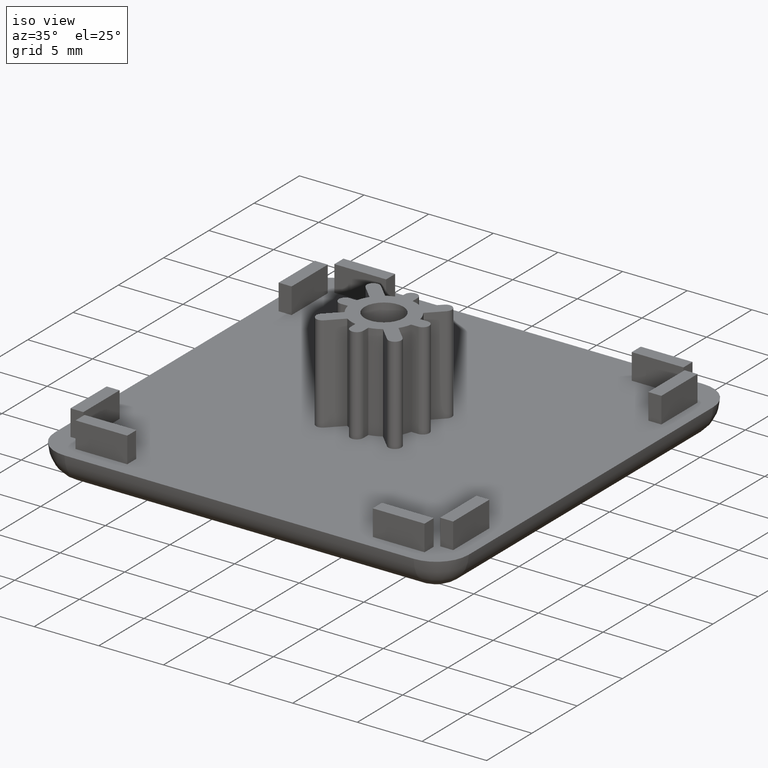
[diagram: clean part render]
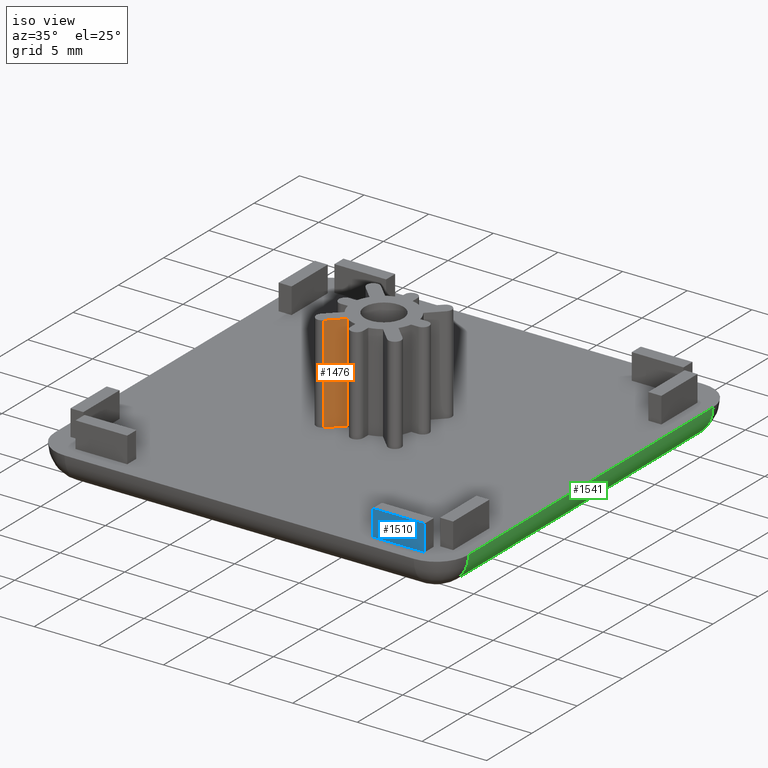
[diagram: same view with three faces highlighted in distinct colors, each labeled with its STEP entity id]
A machine part, iso view with three faces highlighted in distinct colors.
Their STEP definitions:

[orange] entity #1476 — the highlighted planar face has unit normal (0.7071, -0.7071, 0).
#27=PLANE('',#1583);
#112=LINE('',#2217,#280);
#113=LINE('',#2221,#281);
#114=LINE('',#2223,#282);
#115=LINE('',#2224,#283);
#280=VECTOR('',#1785,7.5);
#281=VECTOR('',#1790,1.50025772552266);
#282=VECTOR('',#1791,7.5);
#283=VECTOR('',#1792,1.50025772552266);
#444=FACE_OUTER_BOUND('',#530,.T.);
#530=EDGE_LOOP('',(#1079,#1080,#1081,#1082));
#689=VERTEX_POINT('',#2214);
#690=VERTEX_POINT('',#2216);
#691=VERTEX_POINT('',#2220);
#692=VERTEX_POINT('',#2222);
#847=EDGE_CURVE('',#690,#689,#112,.T.);
#849=EDGE_CURVE('',#689,#691,#113,.T.);
#850=EDGE_CURVE('',#692,#691,#114,.T.);
#851=EDGE_CURVE('',#690,#692,#115,.T.);
#1079=ORIENTED_EDGE('',*,*,#849,.T.);
#1080=ORIENTED_EDGE('',*,*,#850,.F.);
#1081=ORIENTED_EDGE('',*,*,#851,.F.);
#1082=ORIENTED_EDGE('',*,*,#847,.T.);
#1476=ADVANCED_FACE('',(#444),#27,.T.);
#1583=AXIS2_PLACEMENT_3D('',#2219,#1788,#1789);
#1785=DIRECTION('',(0.,0.,1.));
#1788=DIRECTION('center_axis',(0.707106781186564,-0.707106781186531,0.));
#1789=DIRECTION('ref_axis',(0.,0.,-1.));
#1790=DIRECTION('',(-0.707106781186531,-0.707106781186564,0.));
#1791=DIRECTION('',(0.,0.,1.));
#1792=DIRECTION('',(-0.707106781186531,-0.707106781186564,0.));
#2214=CARTESIAN_POINT('',(-12.0775261453427,0.419249998961977,10.));
#2216=CARTESIAN_POINT('',(-12.0775261453427,0.419249998961977,2.5));
#2217=CARTESIAN_POINT('',(-12.0775261453427,0.419249998961977,2.5));
#2219=CARTESIAN_POINT('Origin',(-12.0775261453427,0.419249998961977,2.5));
#2220=CARTESIAN_POINT('',(-13.1383685565872,-0.641592412282627,10.));
#2221=CARTESIAN_POINT('',(-13.1383685565872,-0.641592412282627,10.));
#2222=CARTESIAN_POINT('',(-13.1383685565872,-0.641592412282627,2.5));
#2223=CARTESIAN_POINT('',(-13.1383685565872,-0.641592412282627,2.5));
#2224=CARTESIAN_POINT('',(-11.2115007415582,1.28527540274644,2.5));

[blue] entity #1510 — the highlighted planar face has unit normal (0, -1, 0).
#54=PLANE('',#1635);
#165=LINE('',#2362,#333);
#207=LINE('',#2448,#375);
#208=LINE('',#2451,#376);
#209=LINE('',#2452,#377);
#333=VECTOR('',#1910,4.);
#375=VECTOR('',#1986,2.);
#376=VECTOR('',#1989,4.);
#377=VECTOR('',#1990,2.);
#478=FACE_OUTER_BOUND('',#574,.T.);
#574=EDGE_LOOP('',(#1312,#1313,#1314,#1315));
#745=VERTEX_POINT('',#2359);
#746=VERTEX_POINT('',#2361);
#773=VERTEX_POINT('',#2446);
#774=VERTEX_POINT('',#2450);
#919=EDGE_CURVE('',#745,#746,#165,.T.);
#961=EDGE_CURVE('',#745,#773,#207,.T.);
#962=EDGE_CURVE('',#773,#774,#208,.T.);
#963=EDGE_CURVE('',#746,#774,#209,.T.);
#1312=ORIENTED_EDGE('',*,*,#962,.T.);
#1313=ORIENTED_EDGE('',*,*,#963,.F.);
#1314=ORIENTED_EDGE('',*,*,#919,.F.);
#1315=ORIENTED_EDGE('',*,*,#961,.T.);
#1510=ADVANCED_FACE('',(#478),#54,.T.);
#1635=AXIS2_PLACEMENT_3D('',#2449,#1987,#1988);
#1910=DIRECTION('',(-1.,-1.11022302462516E-15,0.));
#1986=DIRECTION('',(0.,0.,1.));
#1987=DIRECTION('center_axis',(1.11022302462516E-15,-1.,0.));
#1988=DIRECTION('ref_axis',(0.,0.,-1.));
#1989=DIRECTION('',(-1.,-1.11022302462516E-15,0.));
#1990=DIRECTION('',(0.,0.,1.));
#2359=CARTESIAN_POINT('',(2.80097127163295,-12.2951458028759,2.5));
#2361=CARTESIAN_POINT('',(-1.19902872836705,-12.2951458028759,2.5));
#2362=CARTESIAN_POINT('',(-3.94902872836704,-12.2951458028759,2.5));
#2446=CARTESIAN_POINT('',(2.80097127163295,-12.2951458028759,4.5));
#2448=CARTESIAN_POINT('',(2.80097127163295,-12.2951458028759,2.5));
#2449=CARTESIAN_POINT('Origin',(2.80097127163295,-12.2951458028759,2.5));
#2450=CARTESIAN_POINT('',(-1.19902872836705,-12.2951458028759,4.5));
#2451=CARTESIAN_POINT('',(-1.19902872836705,-12.2951458028759,4.5));
#2452=CARTESIAN_POINT('',(-1.19902872836705,-12.2951458028759,2.5));

[green] entity #1541 — the highlighted cylindrical surface (partial cylindrical patch) has radius 2.5 mm, axis along (0, -1, 0).
#143=LINE('',#2312,#311);
#246=LINE('',#2548,#414);
#311=VECTOR('',#1882,27.);
#414=VECTOR('',#2105,27.);
#509=FACE_OUTER_BOUND('',#605,.T.);
#605=EDGE_LOOP('',(#1429,#1430,#1431,#1432));
#646=CIRCLE('',#1660,2.5);
#650=CIRCLE('',#1669,2.5);
#719=VERTEX_POINT('',#2308);
#721=VERTEX_POINT('',#2311);
#791=VERTEX_POINT('',#2525);
#794=VERTEX_POINT('',#2540);
#894=EDGE_CURVE('',#721,#719,#143,.T.);
#998=EDGE_CURVE('',#791,#719,#646,.T.);
#1004=EDGE_CURVE('',#721,#794,#650,.T.);
#1008=EDGE_CURVE('',#791,#794,#246,.T.);
#1429=ORIENTED_EDGE('',*,*,#998,.F.);
#1430=ORIENTED_EDGE('',*,*,#1008,.T.);
#1431=ORIENTED_EDGE('',*,*,#1004,.F.);
#1432=ORIENTED_EDGE('',*,*,#894,.T.);
#1457=CYLINDRICAL_SURFACE('',#1674,2.5);
#1541=ADVANCED_FACE('',(#509),#1457,.T.);
#1660=AXIS2_PLACEMENT_3D('',#2527,#2072,#2073);
#1669=AXIS2_PLACEMENT_3D('',#2541,#2092,#2093);
#1674=AXIS2_PLACEMENT_3D('',#2547,#2103,#2104);
#1882=DIRECTION('',(6.93889390390723E-17,-1.,0.));
#2072=DIRECTION('center_axis',(6.93889390390723E-17,-1.,0.));
#2073=DIRECTION('ref_axis',(0.707106781186547,0.,-0.707106781186548));
#2092=DIRECTION('center_axis',(-6.93889390390723E-17,1.,0.));
#2093=DIRECTION('ref_axis',(0.707106781186547,0.,-0.707106781186548));
#2103=DIRECTION('center_axis',(6.93889390390723E-17,-1.,0.));
#2104=DIRECTION('ref_axis',(0.707106781186547,0.,-0.707106781186548));
#2105=DIRECTION('',(-6.93889390390723E-17,1.,0.));
#2308=CARTESIAN_POINT('',(5.30097127163295,-10.9951458028759,2.5));
#2311=CARTESIAN_POINT('',(5.30097127163294,16.0048541971241,2.5));
#2312=CARTESIAN_POINT('',(5.30097127163294,18.5048541971241,2.5));
#2525=CARTESIAN_POINT('',(2.80097127163295,-10.9951458028759,0.));
#2527=CARTESIAN_POINT('Origin',(2.80097127163295,-10.9951458028759,2.5));
#2540=CARTESIAN_POINT('',(2.80097127163294,16.0048541971241,0.));
#2541=CARTESIAN_POINT('Origin',(2.80097127163294,16.0048541971241,2.5));
#2547=CARTESIAN_POINT('Origin',(2.80097127163295,10.5048541971241,2.5));
#2548=CARTESIAN_POINT('',(2.80097127163295,10.5048541971241,0.));